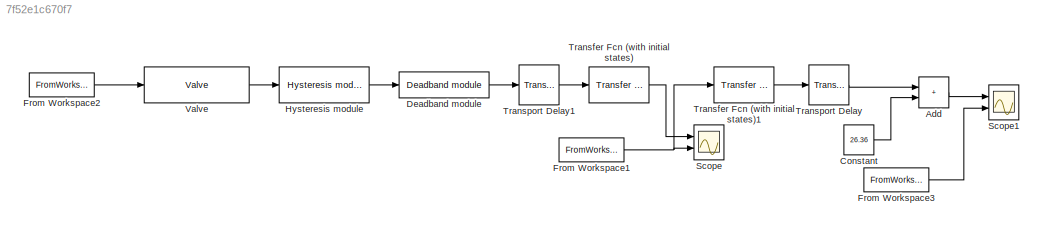
MODEL slx_7f52e1c670f7
KIND model
CONFIG AbsTol = auto
CONFIG EnableMultiTasking = off
CONFIG FixedStep = auto
CONFIG MaxStep = auto
CONFIG MinStep = auto
CONFIG RelTol = 1e-3
CONFIG SampleTimeConstraint = Unconstrained
CONFIG SolverName = VariableStepAuto
CONFIG StartTime = 0.0
CONFIG StopTime = 800
WORKSPACE source: mxarray member
WORKSPACE G_sup_tsp: Simulink.Signal (value not decoded)
BLOCK [Sum] Add
  IconShape = rectangular
  Ports = [2, 1]
BLOCK [Constant] Constant
  Value = 26.36
BLOCK [Reference] Deadband module  REF=IMT_Library/Deadband module
  Ports = [1, 1]
  SourceBlock = IMT_Library/Deadband module
  SourceProductName = Imitation
BLOCK [FromWorkspace] From Workspace1
  VariableName = testData(:,[1,5])
BLOCK [FromWorkspace] From Workspace2
  SampleTime = 1
  VariableName = testData(:,[1,4])
BLOCK [FromWorkspace] From Workspace3
  VariableName = testData(:,[1,9])
BLOCK [Reference] Hysteresis module  REF=IMT_Library/Hysteresis module
  Ports = [1, 1]
  SourceBlock = IMT_Library/Hysteresis module
  SourceProductName = Imitation
BLOCK [Scope] Scope
  Floating = off
  NumInputPorts = 2
  Ports = [2]
  ScopeSpecificationString = Simulink.scopes.TimeScopeBlockCfg('CurrentConfiguration', extmgr.ConfigurationSet(extmgr.Configuration('Core','General UI',true),extmgr.Configuration('Core','Source UI',true),extmgr.Configuration('Sources','WiredSimulink',true,'DataLogging',true),extmgr.Configuration('Visuals','Time Domain',true,'SerializedDisplays',{struct('MinYLimReal','-0.09','MaxYLimReal','0.80997','YLabelReal','','MinYLimMag'...<+1539ch>
BLOCK [Scope] Scope1
  Floating = off
  NumInputPorts = 2
  Ports = [2]
  ScopeSpecificationString = Simulink.scopes.TimeScopeBlockCfg('CurrentConfiguration', extmgr.ConfigurationSet(extmgr.Configuration('Core','General UI',true),extmgr.Configuration('Core','Source UI',true),extmgr.Configuration('Sources','WiredSimulink',true,'DataLogging',true,'DataLoggingVariableName','ScopeData1'),extmgr.Configuration('Visuals','Time Domain',true,'SerializedDisplays',{struct('MinYLimReal','20.11559','MaxYLimRe...<+1559ch>
BLOCK [Reference] Transfer Fcn (with initial states)  REF=simulink_extras/Additional
Linear/Transfer Fcn
(with initial states)
  Ports = [1, 1]
  SourceBlock = simulink_extras/Additional\nLinear/Transfer Fcn\n(with initial states)
  SourceProductBaseCode = SL
  SourceType = Transfer Function with Initial States
BLOCK [Reference] Transfer Fcn (with initial states)1  REF=simulink_extras/Additional
Linear/Transfer Fcn
(with initial states)
  Ports = [1, 1]
  SourceBlock = simulink_extras/Additional\nLinear/Transfer Fcn\n(with initial states)
  SourceProductBaseCode = SL
  SourceType = Transfer Function with Initial States
BLOCK [TransportDelay] Transport Delay
  Ports = [1, 1]
BLOCK [TransportDelay] Transport Delay1
  DelayTime = 3
  Ports = [1, 1]
BLOCK [Reference] Valve  REF=IMT_Library/Valve
  Ports = [1, 1]
  SourceBlock = IMT_Library/Valve
  SourceProductName = Imitation
LINE Add:1 -> Scope1:1
LINE Constant:1 -> Add:2
LINE Deadband module:1 -> Transport Delay1:1
NET From Workspace1:1 -> Scope:2, Transfer Fcn (with initial states)1:1
LINE From Workspace2:1 -> Valve:1
LINE From Workspace3:1 -> Scope1:2
LINE Hysteresis module:1 -> Deadband module:1
LINE Transfer Fcn (with initial states)1:1 -> Transport Delay:1
LINE Transfer Fcn (with initial states):1 -> Scope:1
LINE Transport Delay1:1 -> Transfer Fcn (with initial states):1
LINE Transport Delay:1 -> Add:1
LINE Valve:1 -> Hysteresis module:1
note: NET lines group one-source signal fan-out (src -> all destinations, sorted); 1:1 wires keep LINE
